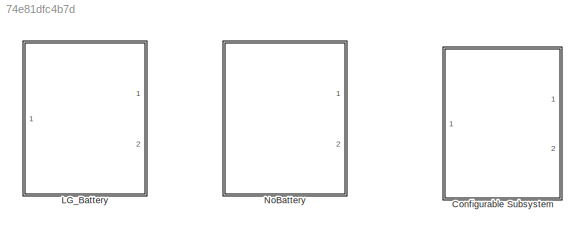
MODEL slx_74e81dfc4b7d
KIND library
CONFIG AbsTol = auto
CONFIG EnableMultiTasking = off
CONFIG FixedStep = auto
CONFIG MaxStep = auto
CONFIG MinStep = auto
CONFIG RelTol = 1e-3
CONFIG SampleTimeConstraint = Unconstrained
CONFIG Solver = VariableStepAuto
CONFIG SolverName = VariableStepAuto
CONFIG StartTime = 0.0
CONFIG StopTime = 10.0
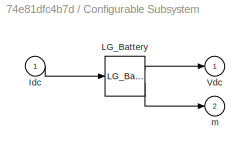
BLOCK [SubSystem] Configurable Subsystem
  BlockChoice = LG_Battery
  MemberBlocks = LG_Battery,NoBattery
  Ports = [1, 2]
  RequestExecContextInheritance = off
  TemplateBlock = self
BLOCK [Inport] Configurable Subsystem/Idc
BLOCK [Reference] Configurable Subsystem/LG_Battery  REF=$bdroot/LG_Battery
  Ports = [1, 2]
  SourceBlock = $bdroot/LG_Battery
  SourceType = SubSystem
BLOCK [Outport] Configurable Subsystem/Vdc
BLOCK [Outport] Configurable Subsystem/m
  Port = 2
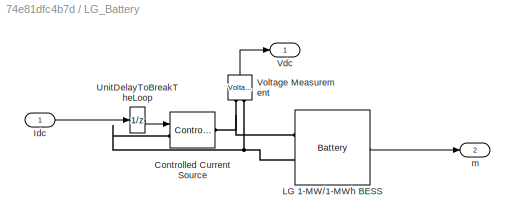
BLOCK [SubSystem] LG_Battery
  Ports = [1, 2]
  RequestExecContextInheritance = off
BLOCK [Reference] LG_Battery/Controlled Current Source  REF=powerlib/Electrical
Sources/Controlled Current Source
  Ports = [1, 0, 0, 0, 0, 1, 1]
  SourceBlock = powerlib/Electrical\nSources/Controlled Current Source
  SourceProductBaseCode = PS
  SourceType = Controlled Current Source
BLOCK [Inport] LG_Battery/Idc
BLOCK [Reference] LG_Battery/LG 1-MW//1-MWh BESS  REF=electricdrivelib/Extra Sources/Battery
  Ports = [0, 1, 0, 0, 0, 2]
  SourceBlock = electricdrivelib/Extra Sources/Battery
  SourceProductBaseCode = PS
  SourceType = Battery
BLOCK [UnitDelay] LG_Battery/UnitDelayToBreakTheLoop
  HasFrameUpgradeWarning = on
  InitialCondition = 1000
  SampleTime = -1
BLOCK [Outport] LG_Battery/Vdc
BLOCK [Reference] LG_Battery/Voltage Measurement  REF=powerlib/Measurements/Voltage Measurement
  NameLocation = right
  Ports = [0, 1, 0, 0, 0, 2]
  SourceBlock = powerlib/Measurements/Voltage Measurement
  SourceProductBaseCode = PS
  SourceType = Voltage Measurement
  UserDataPersistent = on
BLOCK [Outport] LG_Battery/m
  Port = 2
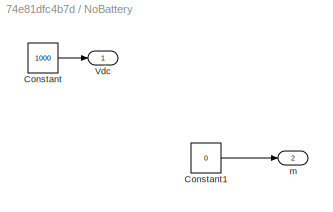
BLOCK [SubSystem] NoBattery
  Ports = [0, 2]
  RequestExecContextInheritance = off
BLOCK [Constant] NoBattery/Constant
  Value = 1000
BLOCK [Constant] NoBattery/Constant1
  Value = 0
BLOCK [Outport] NoBattery/Vdc
BLOCK [Outport] NoBattery/m
  Port = 2
LINE Configurable Subsystem/Idc:1 -> Configurable Subsystem/LG_Battery:1
LINE Configurable Subsystem/LG_Battery:1 -> Configurable Subsystem/Vdc:1
LINE Configurable Subsystem/LG_Battery:2 -> Configurable Subsystem/m:1
LINE LG_Battery/Idc:1 -> LG_Battery/UnitDelayToBreakTheLoop:1
LINE LG_Battery/LG 1-MW//1-MWh BESS:1 -> LG_Battery/m:1
LINE LG_Battery/UnitDelayToBreakTheLoop:1 -> LG_Battery/Controlled Current Source:1
LINE LG_Battery/Voltage Measurement:1 -> LG_Battery/Vdc:1
LINE NoBattery/Constant1:1 -> NoBattery/m:1
LINE NoBattery/Constant:1 -> NoBattery/Vdc:1
PNET net1: LG_Battery/Controlled Current Source:LConn1 -- LG_Battery/LG 1-MW//1-MWh BESS:LConn2 -- LG_Battery/Voltage Measurement:LConn2
PNET net2: LG_Battery/Controlled Current Source:RConn1 -- LG_Battery/LG 1-MW//1-MWh BESS:LConn1 -- LG_Battery/Voltage Measurement:LConn1
note: PNET lines group multi-terminal physical nets as a canonical sorted terminal list (undirected conserving connections); 2-terminal nets keep the pairwise PLINE form
